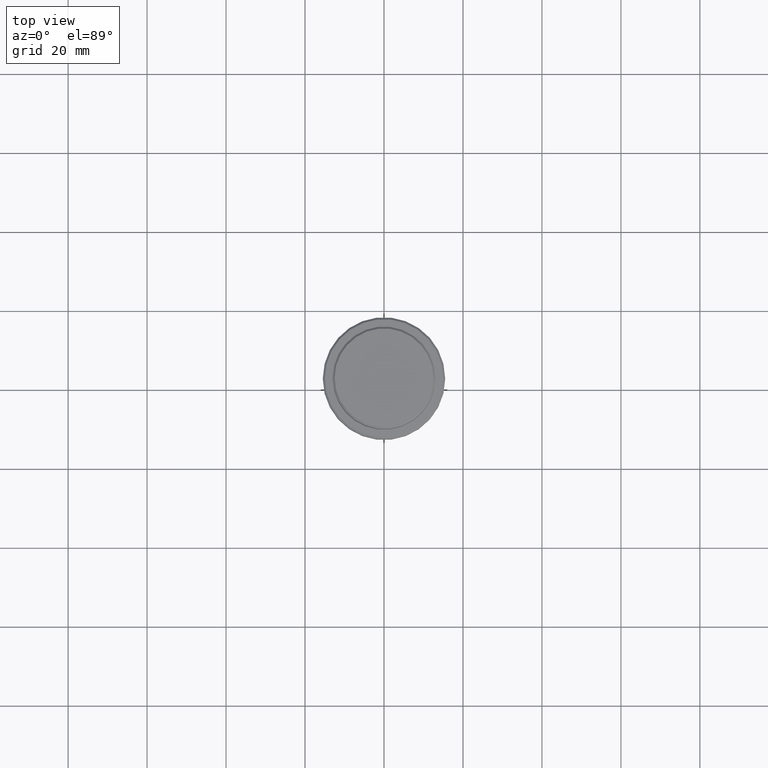
[diagram: clean part render]
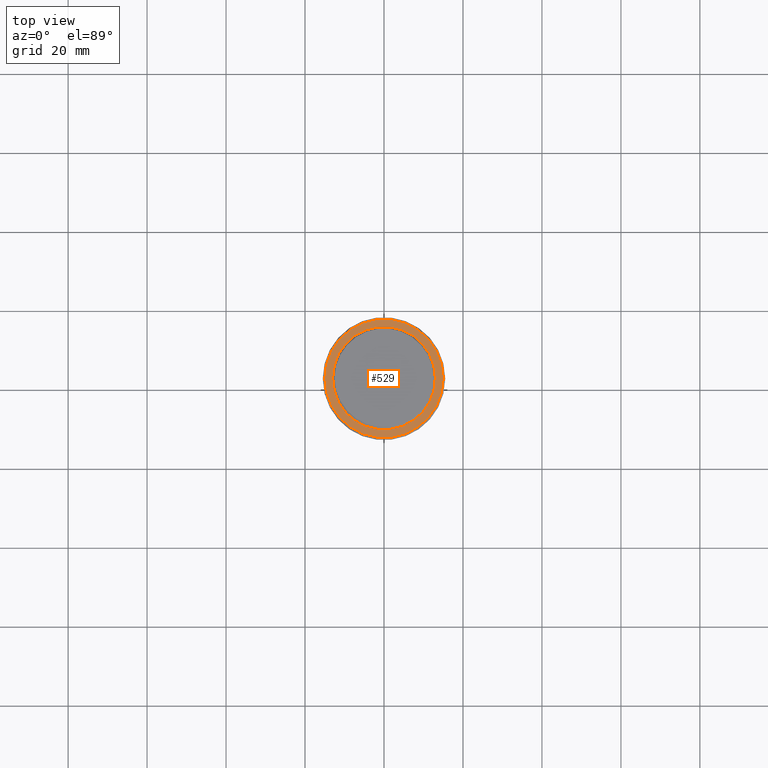
[diagram: same view with one face highlighted and labeled with its STEP entity id]
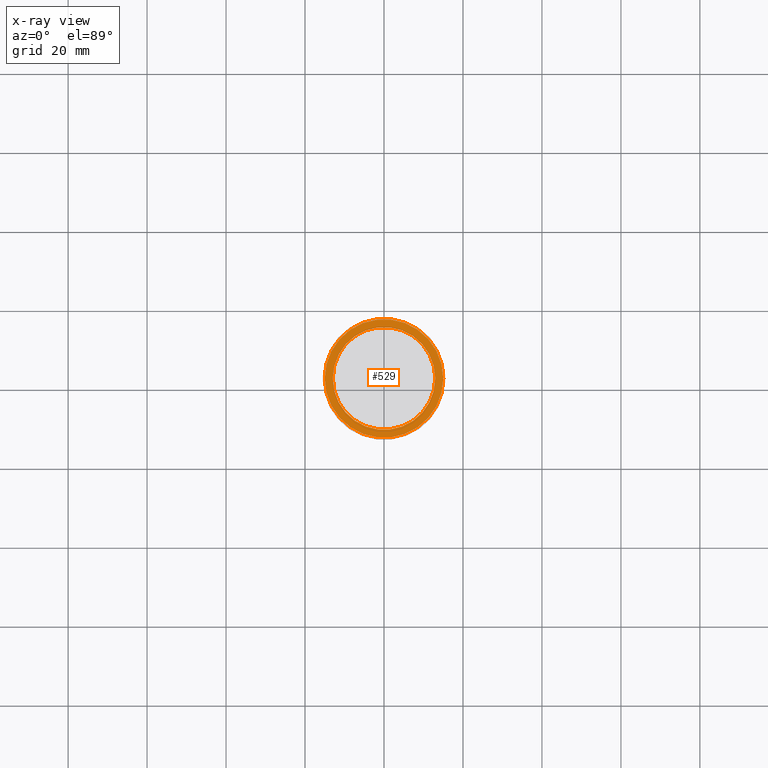
[diagram: x-ray of the same camera — body ghosted, the highlighted face saturated]
A machine part, top view. The second image highlights one B-rep face of the part: STEP entity #529.
The next image is the same camera in x-ray: the body ghosted, the highlighted face saturated — about 0% of this face is hidden behind the body in this view.
In plain terms, the highlighted planar face has unit normal (0, -0, 1).
Its self-contained STEP definition (entity closure, byte-faithful):
#41 = EDGE_CURVE ( 'NONE', #823, #1258, #938, .T. ) ;
#52 = CARTESIAN_POINT ( 'NONE',  ( 0.000000000000000000, 0.000000000000000000, -9.000000000000000000 ) ) ;
#54 = AXIS2_PLACEMENT_3D ( 'NONE', #833, #277, #619 ) ;
#73 = CARTESIAN_POINT ( 'NONE',  ( 0.000000000000000000, 12.49999999999999289, -9.000000000000000000 ) ) ;
#127 = CIRCLE ( 'NONE', #1046, 12.99999999999999467 ) ;
#139 = EDGE_LOOP ( 'NONE', ( #1213, #620 ) ) ;
#157 = DIRECTION ( 'NONE',  ( 0.000000000000000000, 0.000000000000000000, -1.000000000000000000 ) ) ;
#174 = AXIS2_PLACEMENT_3D ( 'NONE', #73, #1154, #500 ) ;
#181 = DIRECTION ( 'NONE',  ( -0.000000000000000000, -0.000000000000000000, 1.000000000000000000 ) ) ;
#253 = CARTESIAN_POINT ( 'NONE',  ( -12.99999999999999467, 1.592040838891558504E-15, -9.000000000000000000 ) ) ;
#267 = CIRCLE ( 'NONE', #802, 12.99999999999999467 ) ;
#277 = DIRECTION ( 'NONE',  ( -0.000000000000000000, -0.000000000000000000, 1.000000000000000000 ) ) ;
#284 = EDGE_CURVE ( 'NONE', #449, #983, #267, .T. ) ;
#313 = AXIS2_PLACEMENT_3D ( 'NONE', #52, #181, #608 ) ;
#364 = CARTESIAN_POINT ( 'NONE',  ( 15.00000000000001421, 1.867586368699714559E-15, -9.000000000000000000 ) ) ;
#373 = EDGE_CURVE ( 'NONE', #983, #449, #127, .T. ) ;
#434 = CARTESIAN_POINT ( 'NONE',  ( 0.000000000000000000, 0.000000000000000000, -9.000000000000000000 ) ) ;
#441 = CIRCLE ( 'NONE', #54, 15.00000000000001421 ) ;
#449 = VERTEX_POINT ( 'NONE', #253 ) ;
#483 = ORIENTED_EDGE ( 'NONE', *, *, #373, .T. ) ;
#500 = DIRECTION ( 'NONE',  ( 1.000000000000000000, 0.000000000000000000, 0.000000000000000000 ) ) ;
#529 = ADVANCED_FACE ( 'NONE', ( #1373, #1176 ), #1062, .T. ) ;
#608 = DIRECTION ( 'NONE',  ( 1.000000000000000000, 0.000000000000000000, 0.000000000000000000 ) ) ;
#619 = DIRECTION ( 'NONE',  ( 1.000000000000000000, 0.000000000000000000, 0.000000000000000000 ) ) ;
#620 = ORIENTED_EDGE ( 'NONE', *, *, #41, .T. ) ;
#802 = AXIS2_PLACEMENT_3D ( 'NONE', #434, #883, #1306 ) ;
#823 = VERTEX_POINT ( 'NONE', #364 ) ;
#833 = CARTESIAN_POINT ( 'NONE',  ( 0.000000000000000000, 0.000000000000000000, -9.000000000000000000 ) ) ;
#843 = ORIENTED_EDGE ( 'NONE', *, *, #284, .T. ) ;
#883 = DIRECTION ( 'NONE',  ( 0.000000000000000000, 0.000000000000000000, -1.000000000000000000 ) ) ;
#885 = CARTESIAN_POINT ( 'NONE',  ( -15.00000000000001421, 0.000000000000000000, -9.000000000000000000 ) ) ;
#898 = EDGE_CURVE ( 'NONE', #1258, #823, #441, .T. ) ;
#938 = CIRCLE ( 'NONE', #313, 15.00000000000001421 ) ;
#983 = VERTEX_POINT ( 'NONE', #1042 ) ;
#1008 = CARTESIAN_POINT ( 'NONE',  ( 0.000000000000000000, 0.000000000000000000, -9.000000000000000000 ) ) ;
#1042 = CARTESIAN_POINT ( 'NONE',  ( 12.99999999999999467, 0.000000000000000000, -9.000000000000000000 ) ) ;
#1046 = AXIS2_PLACEMENT_3D ( 'NONE', #1008, #157, #1109 ) ;
#1062 = PLANE ( 'NONE',  #174 ) ;
#1064 = EDGE_LOOP ( 'NONE', ( #483, #843 ) ) ;
#1109 = DIRECTION ( 'NONE',  ( 1.000000000000000000, 0.000000000000000000, 0.000000000000000000 ) ) ;
#1154 = DIRECTION ( 'NONE',  ( 0.000000000000000000, -0.000000000000000000, 1.000000000000000000 ) ) ;
#1176 = FACE_BOUND ( 'NONE', #1064, .T. ) ;
#1213 = ORIENTED_EDGE ( 'NONE', *, *, #898, .T. ) ;
#1258 = VERTEX_POINT ( 'NONE', #885 ) ;
#1306 = DIRECTION ( 'NONE',  ( 1.000000000000000000, 0.000000000000000000, 0.000000000000000000 ) ) ;
#1373 = FACE_OUTER_BOUND ( 'NONE', #139, .T. ) ;